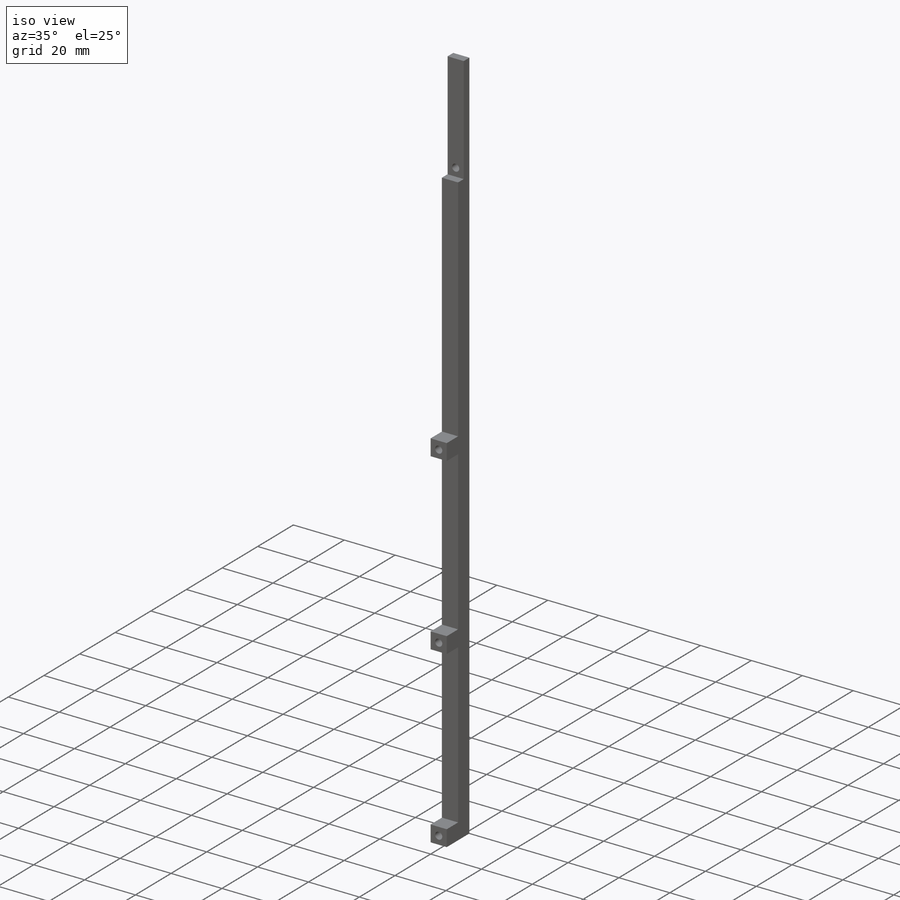
[diagram: iso view]
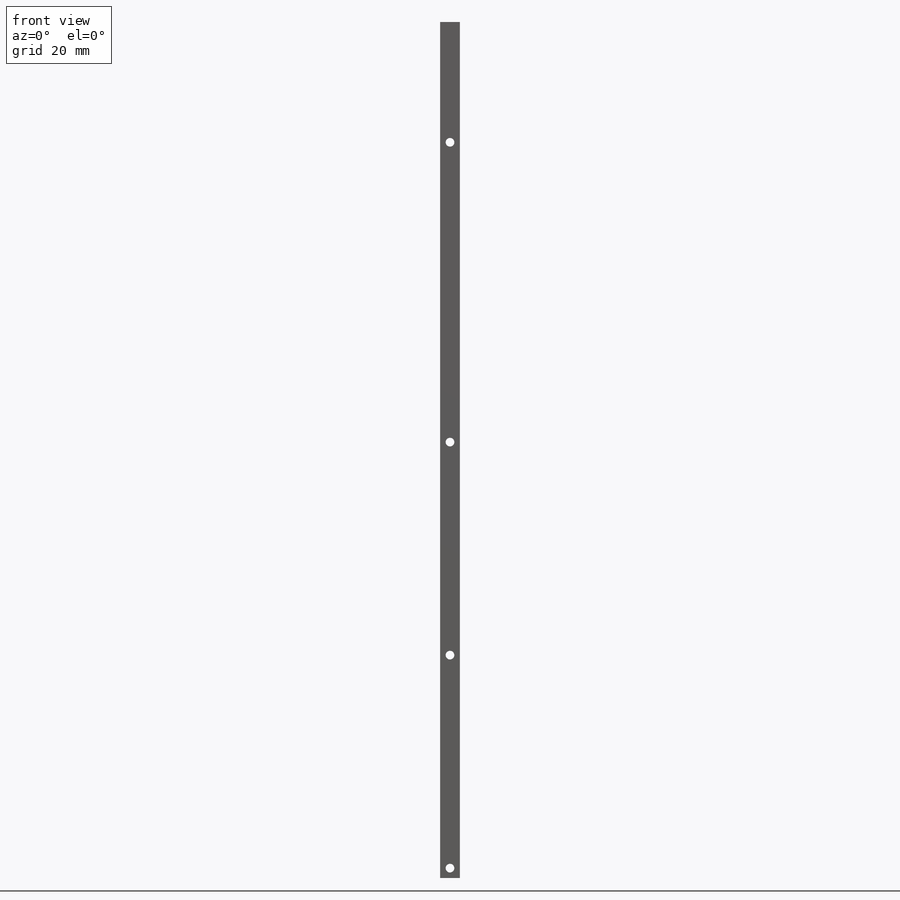
[diagram: front view]
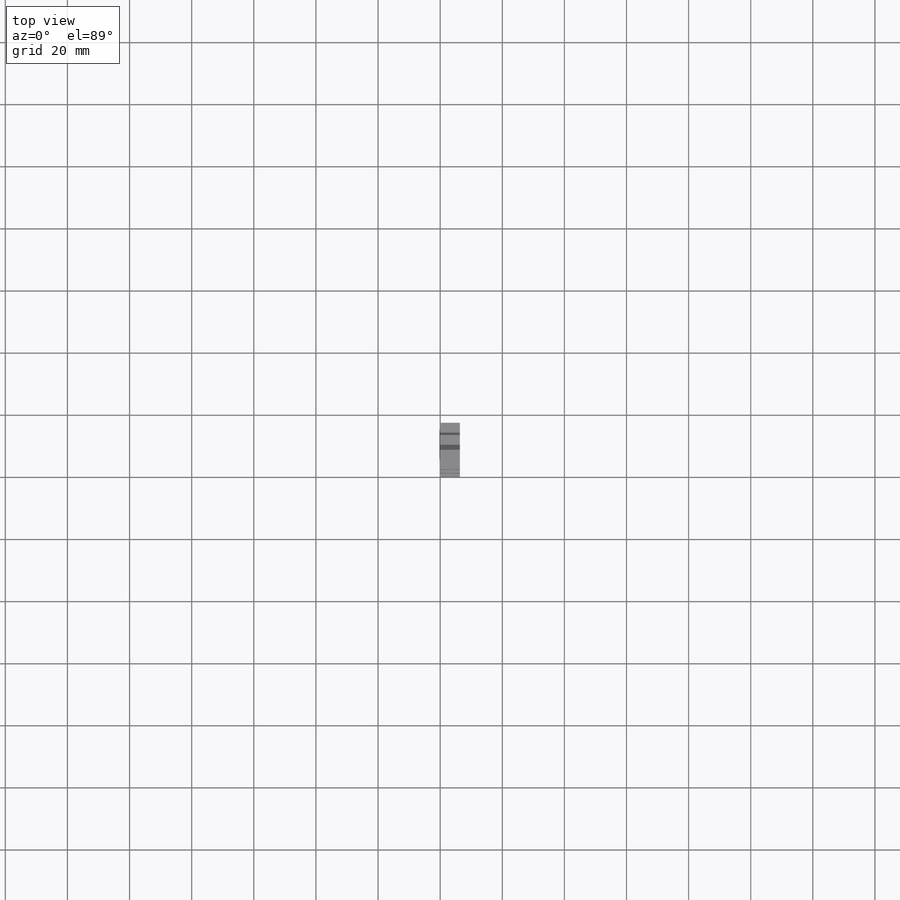
[diagram: top view]
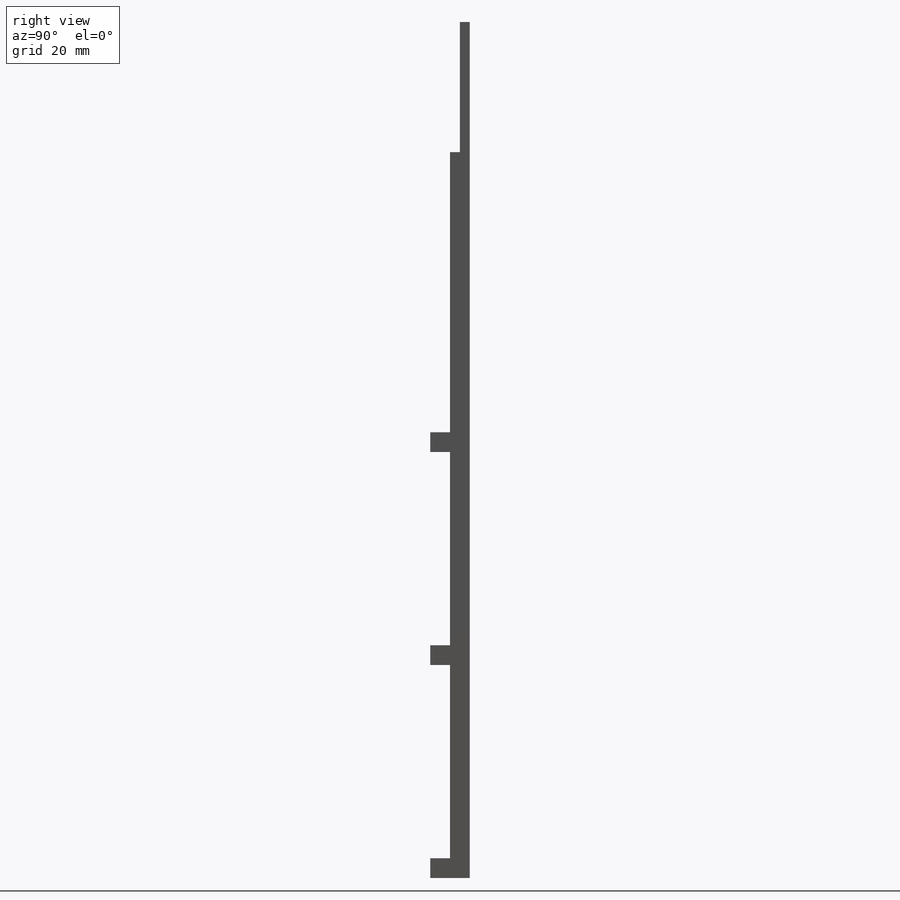
[diagram: right view]
SOLIDWORKS PART (.sldprt)
format: sldprt  version: not decoded by parser v0  size: 233,472 bytes
history: native  units: mm
features: sketch x4, material x1, extrude x1, hole x1 (+13 scaffold rows collapsed)
feature tree (20):
  scaffold x13  (default folders/planes/origin — collapsed)
  material  "Material <not specified>"
  sketch  "Sketch1"  dims[D1=6.35mm D2=12.7mm]
  extrude  "Boss-Extrude1"  Depth=275.59mm
  sketch  "Sketch2"  dims[c1.D1=9.525mm c1.D2=6.35mm c1.D3=6.35mm c1.D4=6.35mm c1.D5=6.35mm c1.D6=90.17mm c1.D7=6.35mm c1.D8=62.23mm c1.D9=6.35mm c1.D10=62.23mm c1.D11=6.35mm c2.D2=6.35mm c2.D5=0.0001mm c2.D6=1.0mm c2.D7=5.0mm]
  hole  "#35 (0.11) Diameter Hole1"  Diameter=2.794mm Depth=12.7mm
  sketch  "Sketch5"  dims[D1=3.175mm D2=71.755mm D3=140.335mm D4=236.855mm]
  sketch  "Sketch4"  dims[hole-wizard template sketch: 59 standard entries collapsed; hole parameters kept: c18.Thru Hole Dia.=2.794mm c18.Thru Hole Depth=12.7mm]
decode coverage: 6 of 6 modeling features carry decoded parameters
note: ~ marks probable driven/reference dimensions
note: suppression state not decoded; provenance and decode notes live in map.json
